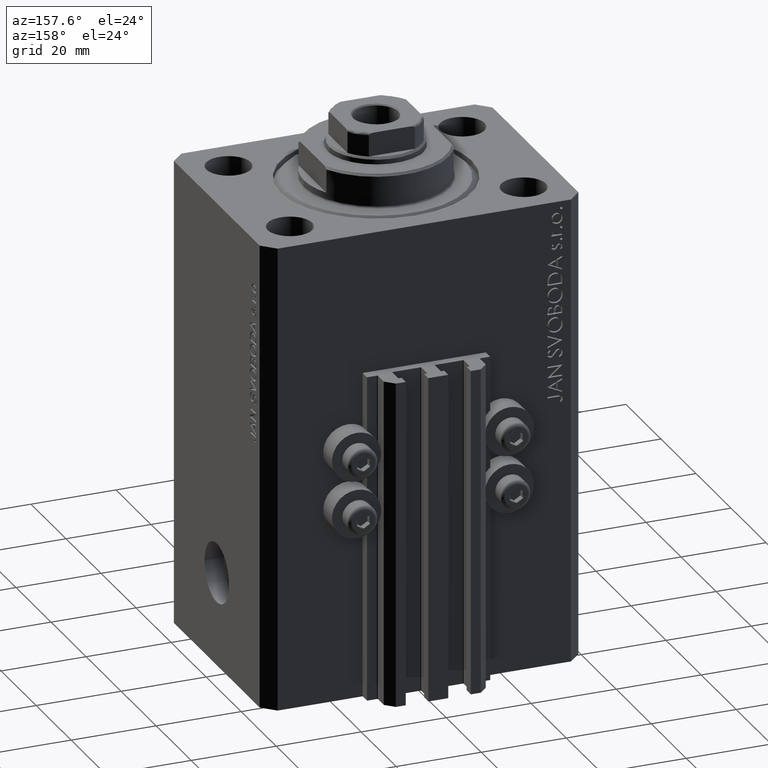
[diagram: clean part render]
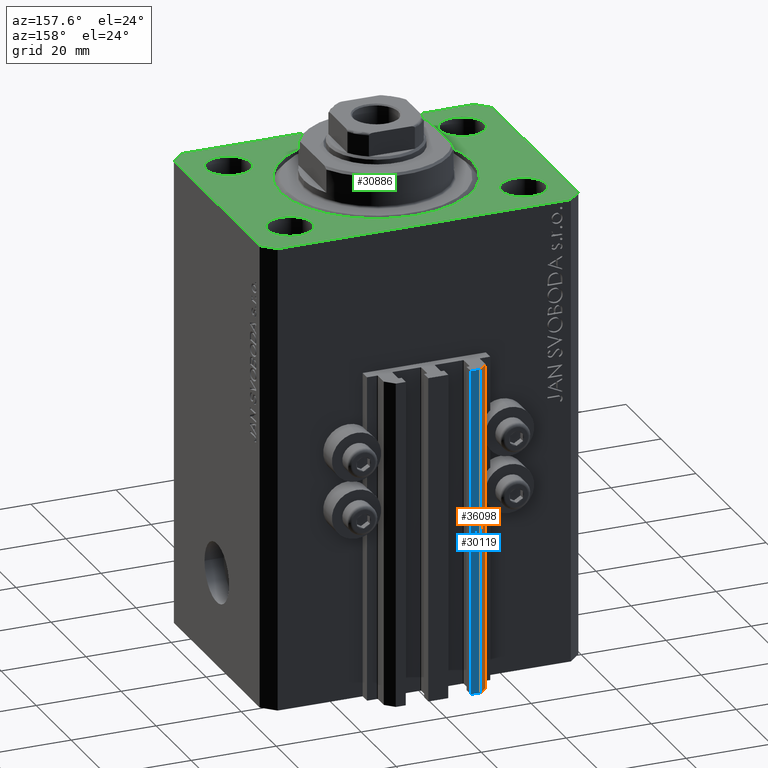
[diagram: same view with three faces highlighted in distinct colors, each labeled with its STEP entity id]
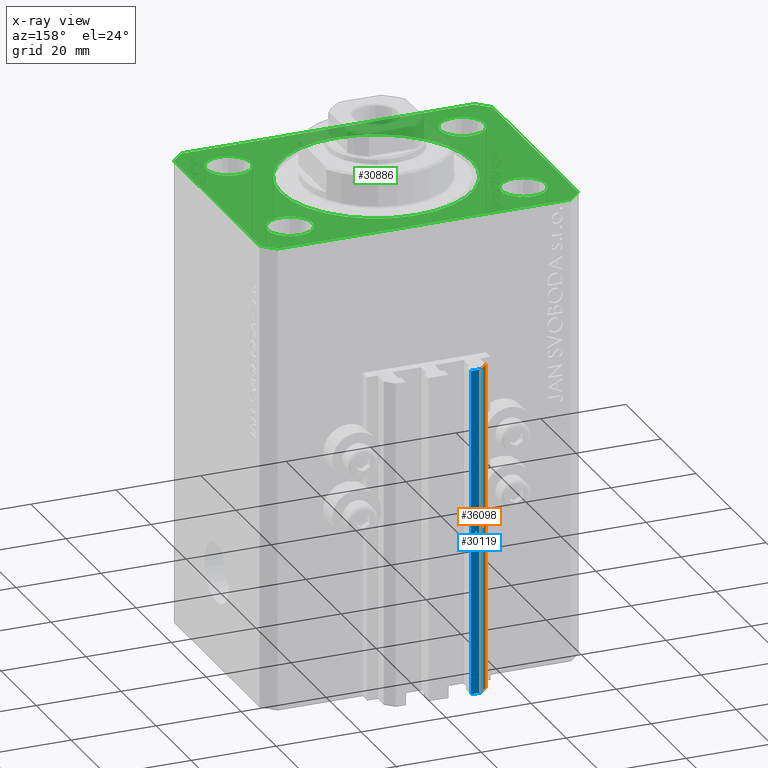
[diagram: x-ray of the same camera — body ghosted, the three highlighted faces saturated]
A machine part, auxiliary view with three faces highlighted in distinct colors.
The next image is the same camera in x-ray (body ghosted, the three faces saturated) — at least one of them is partly hidden behind the body in this view.
Their STEP definitions:

[orange] entity #36098 — the highlighted planar face has unit normal (-0.7071, 0.7071, 0).
#173 = VERTEX_POINT ( 'NONE', #32015 ) ;
#468 = AXIS2_PLACEMENT_3D ( 'NONE', #15660, #8499, #19495 ) ;
#2737 = EDGE_CURVE ( 'NONE', #23709, #173, #38457, .T. ) ;
#6041 = VERTEX_POINT ( 'NONE', #30631 ) ;
#8356 = CARTESIAN_POINT ( 'NONE',  ( -10.00000000000000000, 35.50000000000000000, -110.0000000000000000 ) ) ;
#8499 = DIRECTION ( 'NONE',  ( -0.7071067811865490160, 0.7071067811865461294, 0.000000000000000000 ) ) ;
#10199 = ORIENTED_EDGE ( 'NONE', *, *, #36107, .F. ) ;
#11472 = VECTOR ( 'NONE', #38017, 1000.000000000000000 ) ;
#12219 = CARTESIAN_POINT ( 'NONE',  ( -12.00000000000000000, 33.49999999999998579, -110.0000000000000000 ) ) ;
#15660 = CARTESIAN_POINT ( 'NONE',  ( -10.00000000000000000, 35.50000000000000000, -110.0000000000000000 ) ) ;
#15733 = DIRECTION ( 'NONE',  ( 0.000000000000000000, 0.000000000000000000, 1.000000000000000000 ) ) ;
#16113 = LINE ( 'NONE', #30247, #44229 ) ;
#18746 = ORIENTED_EDGE ( 'NONE', *, *, #2737, .T. ) ;
#19495 = DIRECTION ( 'NONE',  ( -0.7071067811865460184, -0.7071067811865489050, 0.000000000000000000 ) ) ;
#19519 = EDGE_CURVE ( 'NONE', #6041, #23709, #16113, .T. ) ;
#22275 = CARTESIAN_POINT ( 'NONE',  ( -10.00000000000000000, 35.50000000000000000, -33.00000000000000000 ) ) ;
#22371 = FACE_OUTER_BOUND ( 'NONE', #36967, .T. ) ;
#22626 = VECTOR ( 'NONE', #33639, 1000.000000000000227 ) ;
#22660 = EDGE_CURVE ( 'NONE', #6041, #29051, #26538, .T. ) ;
#23709 = VERTEX_POINT ( 'NONE', #12219 ) ;
#26538 = LINE ( 'NONE', #8356, #11472 ) ;
#29051 = VERTEX_POINT ( 'NONE', #22275 ) ;
#30247 = CARTESIAN_POINT ( 'NONE',  ( -10.00000000000000000, 35.50000000000000000, -110.0000000000000000 ) ) ;
#30345 = CARTESIAN_POINT ( 'NONE',  ( -12.00000000000000000, 33.49999999999998579, -110.0000000000000000 ) ) ;
#30507 = LINE ( 'NONE', #41515, #22626 ) ;
#30631 = CARTESIAN_POINT ( 'NONE',  ( -10.00000000000000000, 35.50000000000000000, -110.0000000000000000 ) ) ;
#32015 = CARTESIAN_POINT ( 'NONE',  ( -12.00000000000000000, 33.49999999999998579, -33.00000000000000000 ) ) ;
#33639 = DIRECTION ( 'NONE',  ( -0.7071067811865460184, -0.7071067811865490160, 0.000000000000000000 ) ) ;
#36098 = ADVANCED_FACE ( 'NONE', ( #22371 ), #36979, .T. ) ;
#36107 = EDGE_CURVE ( 'NONE', #29051, #173, #30507, .T. ) ;
#36967 = EDGE_LOOP ( 'NONE', ( #10199, #47163, #41577, #18746 ) ) ;
#36979 = PLANE ( 'NONE',  #468 ) ;
#37673 = DIRECTION ( 'NONE',  ( -0.7071067811865460184, -0.7071067811865490160, 0.000000000000000000 ) ) ;
#38017 = DIRECTION ( 'NONE',  ( 0.000000000000000000, 0.000000000000000000, 1.000000000000000000 ) ) ;
#38457 = LINE ( 'NONE', #30345, #43246 ) ;
#41515 = CARTESIAN_POINT ( 'NONE',  ( -10.00000000000000000, 35.50000000000000000, -33.00000000000000000 ) ) ;
#41577 = ORIENTED_EDGE ( 'NONE', *, *, #19519, .T. ) ;
#43246 = VECTOR ( 'NONE', #15733, 1000.000000000000000 ) ;
#44229 = VECTOR ( 'NONE', #37673, 1000.000000000000227 ) ;
#47163 = ORIENTED_EDGE ( 'NONE', *, *, #22660, .F. ) ;

[blue] entity #30119 — the highlighted planar face has unit normal (0, 1, 0).
#281 = CARTESIAN_POINT ( 'NONE',  ( -7.650000000000000355, 35.50000000000000000, -110.0000000000000000 ) ) ;
#593 = ORIENTED_EDGE ( 'NONE', *, *, #2146, .F. ) ;
#2095 = DIRECTION ( 'NONE',  ( 0.000000000000000000, 0.000000000000000000, 1.000000000000000000 ) ) ;
#2146 = EDGE_CURVE ( 'NONE', #24169, #29051, #8211, .T. ) ;
#4199 = VECTOR ( 'NONE', #7571, 1000.000000000000000 ) ;
#6041 = VERTEX_POINT ( 'NONE', #30631 ) ;
#7571 = DIRECTION ( 'NONE',  ( -1.000000000000000000, 0.000000000000000000, 0.000000000000000000 ) ) ;
#8211 = LINE ( 'NONE', #15614, #24906 ) ;
#8356 = CARTESIAN_POINT ( 'NONE',  ( -10.00000000000000000, 35.50000000000000000, -110.0000000000000000 ) ) ;
#10987 = DIRECTION ( 'NONE',  ( 0.000000000000000000, 1.000000000000000000, -0.000000000000000000 ) ) ;
#11472 = VECTOR ( 'NONE', #38017, 1000.000000000000000 ) ;
#11619 = LINE ( 'NONE', #26219, #4199 ) ;
#15614 = CARTESIAN_POINT ( 'NONE',  ( -7.650000000000000355, 35.50000000000000000, -33.00000000000000000 ) ) ;
#17984 = DIRECTION ( 'NONE',  ( 0.000000000000000000, 0.000000000000000000, 1.000000000000000000 ) ) ;
#21810 = LINE ( 'NONE', #281, #47203 ) ;
#22275 = CARTESIAN_POINT ( 'NONE',  ( -10.00000000000000000, 35.50000000000000000, -33.00000000000000000 ) ) ;
#22581 = ORIENTED_EDGE ( 'NONE', *, *, #22660, .T. ) ;
#22660 = EDGE_CURVE ( 'NONE', #6041, #29051, #26538, .T. ) ;
#24169 = VERTEX_POINT ( 'NONE', #37238 ) ;
#24906 = VECTOR ( 'NONE', #44357, 1000.000000000000000 ) ;
#25360 = FACE_OUTER_BOUND ( 'NONE', #33948, .T. ) ;
#26219 = CARTESIAN_POINT ( 'NONE',  ( -7.650000000000000355, 35.50000000000000000, -110.0000000000000000 ) ) ;
#26538 = LINE ( 'NONE', #8356, #11472 ) ;
#27113 = VERTEX_POINT ( 'NONE', #40731 ) ;
#27172 = AXIS2_PLACEMENT_3D ( 'NONE', #43774, #10987, #2095 ) ;
#28417 = EDGE_CURVE ( 'NONE', #27113, #6041, #11619, .T. ) ;
#29051 = VERTEX_POINT ( 'NONE', #22275 ) ;
#30119 = ADVANCED_FACE ( 'NONE', ( #25360 ), #47381, .T. ) ;
#30177 = ORIENTED_EDGE ( 'NONE', *, *, #39667, .F. ) ;
#30631 = CARTESIAN_POINT ( 'NONE',  ( -10.00000000000000000, 35.50000000000000000, -110.0000000000000000 ) ) ;
#33948 = EDGE_LOOP ( 'NONE', ( #593, #30177, #41894, #22581 ) ) ;
#37238 = CARTESIAN_POINT ( 'NONE',  ( -7.650000000000000355, 35.50000000000000000, -33.00000000000000000 ) ) ;
#38017 = DIRECTION ( 'NONE',  ( 0.000000000000000000, 0.000000000000000000, 1.000000000000000000 ) ) ;
#39667 = EDGE_CURVE ( 'NONE', #27113, #24169, #21810, .T. ) ;
#40731 = CARTESIAN_POINT ( 'NONE',  ( -7.650000000000000355, 35.50000000000000000, -110.0000000000000000 ) ) ;
#41894 = ORIENTED_EDGE ( 'NONE', *, *, #28417, .T. ) ;
#43774 = CARTESIAN_POINT ( 'NONE',  ( -7.650000000000000355, 35.50000000000000000, -110.0000000000000000 ) ) ;
#44357 = DIRECTION ( 'NONE',  ( -1.000000000000000000, 0.000000000000000000, 0.000000000000000000 ) ) ;
#47203 = VECTOR ( 'NONE', #17984, 1000.000000000000000 ) ;
#47381 = PLANE ( 'NONE',  #27172 ) ;

[green] entity #30886 — the highlighted planar face has unit normal (0, 0, 1).
#24 = LINE ( 'NONE', #14352, #7596 ) ;
#119 = EDGE_CURVE ( 'NONE', #2964, #8043, #23300, .T. ) ;
#520 = CIRCLE ( 'NONE', #10413, 22.50000000000000355 ) ;
#704 = CIRCLE ( 'NONE', #2991, 5.250000000000000888 ) ;
#1052 = EDGE_CURVE ( 'NONE', #10275, #7140, #46074, .T. ) ;
#1702 = CARTESIAN_POINT ( 'NONE',  ( 27.50000000000000000, 17.49999999999999289, 0.000000000000000000 ) ) ;
#1937 = CIRCLE ( 'NONE', #40160, 5.250000000000000888 ) ;
#2112 = CARTESIAN_POINT ( 'NONE',  ( 27.50000000000000000, 17.49999999999999289, 0.000000000000000000 ) ) ;
#2142 = CARTESIAN_POINT ( 'NONE',  ( 37.49999999999999289, -24.50000000000000000, 0.000000000000000000 ) ) ;
#2248 = ORIENTED_EDGE ( 'NONE', *, *, #19315, .F. ) ;
#2426 = FACE_OUTER_BOUND ( 'NONE', #10309, .T. ) ;
#2462 = CARTESIAN_POINT ( 'NONE',  ( 34.49999999999999289, -27.49999999999999645, 0.000000000000000000 ) ) ;
#2483 = EDGE_LOOP ( 'NONE', ( #40923, #45808 ) ) ;
#2739 = CARTESIAN_POINT ( 'NONE',  ( 37.50000000000051870, 24.49999999999995381, 0.000000000000000000 ) ) ;
#2964 = VERTEX_POINT ( 'NONE', #7094 ) ;
#2977 = DIRECTION ( 'NONE',  ( 1.000000000000000000, 0.000000000000000000, 0.000000000000000000 ) ) ;
#2982 = EDGE_CURVE ( 'NONE', #43987, #19562, #23395, .T. ) ;
#2991 = AXIS2_PLACEMENT_3D ( 'NONE', #18179, #18427, #7668 ) ;
#3036 = EDGE_CURVE ( 'NONE', #40335, #42058, #520, .T. ) ;
#3265 = DIRECTION ( 'NONE',  ( 1.000000000000000000, 0.000000000000000000, 0.000000000000000000 ) ) ;
#3968 = CIRCLE ( 'NONE', #30704, 5.250000000000000888 ) ;
#4401 = CARTESIAN_POINT ( 'NONE',  ( 32.74999999999999289, -17.50000000000000000, 0.000000000000000000 ) ) ;
#4451 = ORIENTED_EDGE ( 'NONE', *, *, #33014, .T. ) ;
#4583 = DIRECTION ( 'NONE',  ( 0.000000000000000000, 0.000000000000000000, 1.000000000000000000 ) ) ;
#4638 = CARTESIAN_POINT ( 'NONE',  ( 37.49999999999999289, -24.50000000000000000, 0.000000000000000000 ) ) ;
#4700 = CARTESIAN_POINT ( 'NONE',  ( -27.50000000000000000, 17.49999999999999645, 0.000000000000000000 ) ) ;
#4879 = LINE ( 'NONE', #12289, #34278 ) ;
#5401 = CARTESIAN_POINT ( 'NONE',  ( 0.000000000000000000, 0.000000000000000000, 0.000000000000000000 ) ) ;
#5839 = ORIENTED_EDGE ( 'NONE', *, *, #16198, .F. ) ;
#6262 = EDGE_LOOP ( 'NONE', ( #40230, #32883 ) ) ;
#7094 = CARTESIAN_POINT ( 'NONE',  ( 32.75000000000000000, 17.49999999999999289, 0.000000000000000000 ) ) ;
#7140 = VERTEX_POINT ( 'NONE', #38007 ) ;
#7436 = ORIENTED_EDGE ( 'NONE', *, *, #3036, .F. ) ;
#7596 = VECTOR ( 'NONE', #21778, 1000.000000000000000 ) ;
#7668 = DIRECTION ( 'NONE',  ( 1.000000000000000000, 0.000000000000000000, 0.000000000000000000 ) ) ;
#7751 = EDGE_CURVE ( 'NONE', #20868, #31567, #4879, .T. ) ;
#7808 = DIRECTION ( 'NONE',  ( 0.000000000000000000, 0.000000000000000000, 1.000000000000000000 ) ) ;
#8043 = VERTEX_POINT ( 'NONE', #38309 ) ;
#9172 = ORIENTED_EDGE ( 'NONE', *, *, #17668, .T. ) ;
#9218 = CARTESIAN_POINT ( 'NONE',  ( -34.49999999999999289, 27.50000000000000000, 0.000000000000000000 ) ) ;
#9227 = DIRECTION ( 'NONE',  ( 1.000000000000000000, 0.000000000000000000, 0.000000000000000000 ) ) ;
#9401 = CIRCLE ( 'NONE', #46114, 5.250000000000000888 ) ;
#9514 = AXIS2_PLACEMENT_3D ( 'NONE', #2112, #16703, #31309 ) ;
#9583 = CARTESIAN_POINT ( 'NONE',  ( -34.49999999999999289, 27.50000000000000000, 0.000000000000000000 ) ) ;
#9958 = CARTESIAN_POINT ( 'NONE',  ( 22.24999999999999289, -17.50000000000000000, 0.000000000000000000 ) ) ;
#10071 = FACE_BOUND ( 'NONE', #25714, .T. ) ;
#10141 = CARTESIAN_POINT ( 'NONE',  ( 27.49999999999999289, -17.50000000000000000, 0.000000000000000000 ) ) ;
#10275 = VERTEX_POINT ( 'NONE', #9583 ) ;
#10309 = EDGE_LOOP ( 'NONE', ( #13477, #42538, #14194, #11477, #47132, #9172, #4451, #19118 ) ) ;
#10365 = EDGE_CURVE ( 'NONE', #41951, #10275, #24, .T. ) ;
#10413 = AXIS2_PLACEMENT_3D ( 'NONE', #18568, #7808, #22388 ) ;
#10493 = LINE ( 'NONE', #25103, #32139 ) ;
#10664 = CARTESIAN_POINT ( 'NONE',  ( -22.25000000000000000, 17.49999999999999645, 0.000000000000000000 ) ) ;
#10740 = VECTOR ( 'NONE', #43186, 1000.000000000000114 ) ;
#11149 = DIRECTION ( 'NONE',  ( 1.000000000000000000, 0.000000000000000000, 0.000000000000000000 ) ) ;
#11477 = ORIENTED_EDGE ( 'NONE', *, *, #7751, .T. ) ;
#11860 = ORIENTED_EDGE ( 'NONE', *, *, #2982, .F. ) ;
#12289 = CARTESIAN_POINT ( 'NONE',  ( -37.49999999999999289, -24.50000000000000000, 0.000000000000000000 ) ) ;
#12851 = CIRCLE ( 'NONE', #34268, 5.250000000000000888 ) ;
#13259 = DIRECTION ( 'NONE',  ( -0.7071067811865471286, -0.7071067811865479058, 0.000000000000000000 ) ) ;
#13365 = DIRECTION ( 'NONE',  ( 1.076236605503979380E-14, 1.000000000000000000, 0.000000000000000000 ) ) ;
#13477 = ORIENTED_EDGE ( 'NONE', *, *, #10365, .T. ) ;
#13655 = FACE_BOUND ( 'NONE', #2483, .T. ) ;
#13804 = VERTEX_POINT ( 'NONE', #10664 ) ;
#14194 = ORIENTED_EDGE ( 'NONE', *, *, #26909, .T. ) ;
#14352 = CARTESIAN_POINT ( 'NONE',  ( 34.50000000000056843, 27.50000000000000000, 0.000000000000000000 ) ) ;
#15796 = DIRECTION ( 'NONE',  ( 1.000000000000000000, 0.000000000000000000, 0.000000000000000000 ) ) ;
#16198 = EDGE_CURVE ( 'NONE', #29532, #38544, #3968, .T. ) ;
#16285 = DIRECTION ( 'NONE',  ( 1.000000000000000000, 0.000000000000000000, 0.000000000000000000 ) ) ;
#16638 = VERTEX_POINT ( 'NONE', #2462 ) ;
#16703 = DIRECTION ( 'NONE',  ( 0.000000000000000000, 0.000000000000000000, 1.000000000000000000 ) ) ;
#17018 = CARTESIAN_POINT ( 'NONE',  ( 0.000000000000000000, 0.000000000000000000, 0.000000000000000000 ) ) ;
#17668 = EDGE_CURVE ( 'NONE', #16638, #32512, #27737, .T. ) ;
#18179 = CARTESIAN_POINT ( 'NONE',  ( -27.50000000000000000, 17.49999999999999645, 0.000000000000000000 ) ) ;
#18245 = EDGE_CURVE ( 'NONE', #13804, #31180, #12851, .T. ) ;
#18427 = DIRECTION ( 'NONE',  ( 0.000000000000000000, 0.000000000000000000, 1.000000000000000000 ) ) ;
#18568 = CARTESIAN_POINT ( 'NONE',  ( 0.000000000000000000, 0.000000000000000000, 0.000000000000000000 ) ) ;
#18808 = DIRECTION ( 'NONE',  ( 0.000000000000000000, 0.000000000000000000, 1.000000000000000000 ) ) ;
#19118 = ORIENTED_EDGE ( 'NONE', *, *, #46938, .T. ) ;
#19151 = AXIS2_PLACEMENT_3D ( 'NONE', #1702, #27056, #16285 ) ;
#19315 = EDGE_CURVE ( 'NONE', #42058, #40335, #22850, .T. ) ;
#19542 = VECTOR ( 'NONE', #13259, 1000.000000000000000 ) ;
#19562 = VERTEX_POINT ( 'NONE', #27584 ) ;
#19991 = DIRECTION ( 'NONE',  ( 0.000000000000000000, 0.000000000000000000, 1.000000000000000000 ) ) ;
#20868 = VERTEX_POINT ( 'NONE', #30402 ) ;
#21191 = CARTESIAN_POINT ( 'NONE',  ( -32.74999999999999289, -17.50000000000000000, 0.000000000000000000 ) ) ;
#21319 = FACE_BOUND ( 'NONE', #6262, .T. ) ;
#21675 = CARTESIAN_POINT ( 'NONE',  ( -27.49999999999999289, -17.50000000000000000, 0.000000000000000000 ) ) ;
#21778 = DIRECTION ( 'NONE',  ( -1.000000000000000000, 0.000000000000000000, 0.000000000000000000 ) ) ;
#22388 = DIRECTION ( 'NONE',  ( 1.000000000000000000, 0.000000000000000000, 0.000000000000000000 ) ) ;
#22556 = VECTOR ( 'NONE', #13365, 1000.000000000000000 ) ;
#22850 = CIRCLE ( 'NONE', #47316, 22.50000000000000355 ) ;
#22946 = EDGE_CURVE ( 'NONE', #31567, #16638, #10493, .T. ) ;
#23300 = CIRCLE ( 'NONE', #9514, 5.250000000000000888 ) ;
#23395 = CIRCLE ( 'NONE', #34114, 5.250000000000000888 ) ;
#23423 = ORIENTED_EDGE ( 'NONE', *, *, #29467, .F. ) ;
#23739 = EDGE_CURVE ( 'NONE', #19562, #43987, #9401, .T. ) ;
#24149 = CARTESIAN_POINT ( 'NONE',  ( 34.49999999999999289, -27.49999999999999645, 0.000000000000000000 ) ) ;
#24485 = CARTESIAN_POINT ( 'NONE',  ( 22.50000000000000355, 0.000000000000000000, 0.000000000000000000 ) ) ;
#24765 = LINE ( 'NONE', #39363, #10740 ) ;
#25103 = CARTESIAN_POINT ( 'NONE',  ( -34.49999999999998579, -27.49999999999999645, 0.000000000000000000 ) ) ;
#25714 = EDGE_LOOP ( 'NONE', ( #5839, #23423 ) ) ;
#25986 = CARTESIAN_POINT ( 'NONE',  ( -32.75000000000000000, 17.49999999999999645, 0.000000000000000000 ) ) ;
#26909 = EDGE_CURVE ( 'NONE', #7140, #20868, #42667, .T. ) ;
#26953 = DIRECTION ( 'NONE',  ( 0.000000000000000000, 0.000000000000000000, 1.000000000000000000 ) ) ;
#27056 = DIRECTION ( 'NONE',  ( 0.000000000000000000, 0.000000000000000000, 1.000000000000000000 ) ) ;
#27584 = CARTESIAN_POINT ( 'NONE',  ( -22.24999999999999289, -17.50000000000000000, 0.000000000000000000 ) ) ;
#27737 = LINE ( 'NONE', #24149, #39688 ) ;
#28057 = CARTESIAN_POINT ( 'NONE',  ( -37.49999999999999289, 24.50000000000000000, 0.000000000000000000 ) ) ;
#28446 = DIRECTION ( 'NONE',  ( 1.000000000000000000, 0.000000000000000000, 0.000000000000000000 ) ) ;
#28682 = LINE ( 'NONE', #2142, #22556 ) ;
#29427 = EDGE_LOOP ( 'NONE', ( #43799, #11860 ) ) ;
#29467 = EDGE_CURVE ( 'NONE', #38544, #29532, #1937, .T. ) ;
#29512 = CARTESIAN_POINT ( 'NONE',  ( -34.49999999999998579, -27.49999999999999645, 0.000000000000000000 ) ) ;
#29532 = VERTEX_POINT ( 'NONE', #4401 ) ;
#30402 = CARTESIAN_POINT ( 'NONE',  ( -37.49999999999999289, -24.50000000000000000, 0.000000000000000000 ) ) ;
#30704 = AXIS2_PLACEMENT_3D ( 'NONE', #41789, #26953, #9227 ) ;
#30886 = ADVANCED_FACE ( 'NONE', ( #39505, #35223, #10071, #21319, #13655, #2426 ), #46704, .T. ) ;
#31180 = VERTEX_POINT ( 'NONE', #25986 ) ;
#31309 = DIRECTION ( 'NONE',  ( 1.000000000000000000, 0.000000000000000000, 0.000000000000000000 ) ) ;
#31567 = VERTEX_POINT ( 'NONE', #29512 ) ;
#32139 = VECTOR ( 'NONE', #28446, 1000.000000000000000 ) ;
#32512 = VERTEX_POINT ( 'NONE', #4638 ) ;
#32883 = ORIENTED_EDGE ( 'NONE', *, *, #46610, .F. ) ;
#33014 = EDGE_CURVE ( 'NONE', #32512, #46154, #28682, .T. ) ;
#34114 = AXIS2_PLACEMENT_3D ( 'NONE', #21675, #43701, #3265 ) ;
#34268 = AXIS2_PLACEMENT_3D ( 'NONE', #4700, #18808, #11149 ) ;
#34278 = VECTOR ( 'NONE', #37669, 1000.000000000000000 ) ;
#35223 = FACE_BOUND ( 'NONE', #29427, .T. ) ;
#35619 = AXIS2_PLACEMENT_3D ( 'NONE', #17018, #46224, #39042 ) ;
#36269 = VECTOR ( 'NONE', #38844, 1000.000000000000000 ) ;
#37669 = DIRECTION ( 'NONE',  ( 0.7071067811865483499, -0.7071067811865466846, 0.000000000000000000 ) ) ;
#37911 = CARTESIAN_POINT ( 'NONE',  ( 34.50000000000056843, 27.50000000000000000, 0.000000000000000000 ) ) ;
#38007 = CARTESIAN_POINT ( 'NONE',  ( -37.49999999999999289, 24.50000000000000000, 0.000000000000000000 ) ) ;
#38309 = CARTESIAN_POINT ( 'NONE',  ( 22.25000000000000000, 17.49999999999999289, 0.000000000000000000 ) ) ;
#38544 = VERTEX_POINT ( 'NONE', #9958 ) ;
#38844 = DIRECTION ( 'NONE',  ( 0.000000000000000000, -1.000000000000000000, 0.000000000000000000 ) ) ;
#39042 = DIRECTION ( 'NONE',  ( 1.000000000000000000, 0.000000000000000000, -0.000000000000000000 ) ) ;
#39363 = CARTESIAN_POINT ( 'NONE',  ( 37.50000000000051870, 24.49999999999995381, 0.000000000000000000 ) ) ;
#39505 = FACE_BOUND ( 'NONE', #39728, .T. ) ;
#39688 = VECTOR ( 'NONE', #42347, 1000.000000000000114 ) ;
#39728 = EDGE_LOOP ( 'NONE', ( #2248, #7436 ) ) ;
#39894 = CARTESIAN_POINT ( 'NONE',  ( -22.50000000000000355, 2.755455298081544383E-15, 0.000000000000000000 ) ) ;
#40160 = AXIS2_PLACEMENT_3D ( 'NONE', #10141, #46537, #2977 ) ;
#40230 = ORIENTED_EDGE ( 'NONE', *, *, #119, .F. ) ;
#40335 = VERTEX_POINT ( 'NONE', #39894 ) ;
#40923 = ORIENTED_EDGE ( 'NONE', *, *, #18245, .F. ) ;
#41789 = CARTESIAN_POINT ( 'NONE',  ( 27.49999999999999289, -17.50000000000000000, 0.000000000000000000 ) ) ;
#41951 = VERTEX_POINT ( 'NONE', #37911 ) ;
#42058 = VERTEX_POINT ( 'NONE', #24485 ) ;
#42074 = CIRCLE ( 'NONE', #19151, 5.250000000000000888 ) ;
#42347 = DIRECTION ( 'NONE',  ( 0.7071067811865474617, 0.7071067811865474617, 0.000000000000000000 ) ) ;
#42538 = ORIENTED_EDGE ( 'NONE', *, *, #1052, .T. ) ;
#42667 = LINE ( 'NONE', #28057, #36269 ) ;
#42852 = EDGE_CURVE ( 'NONE', #31180, #13804, #704, .T. ) ;
#43186 = DIRECTION ( 'NONE',  ( -0.7071067811865364705, 0.7071067811865584529, 0.000000000000000000 ) ) ;
#43701 = DIRECTION ( 'NONE',  ( 0.000000000000000000, 0.000000000000000000, 1.000000000000000000 ) ) ;
#43799 = ORIENTED_EDGE ( 'NONE', *, *, #23739, .F. ) ;
#43987 = VERTEX_POINT ( 'NONE', #21191 ) ;
#44530 = CARTESIAN_POINT ( 'NONE',  ( -27.49999999999999289, -17.50000000000000000, 0.000000000000000000 ) ) ;
#45600 = DIRECTION ( 'NONE',  ( 1.000000000000000000, 0.000000000000000000, 0.000000000000000000 ) ) ;
#45808 = ORIENTED_EDGE ( 'NONE', *, *, #42852, .F. ) ;
#46074 = LINE ( 'NONE', #9218, #19542 ) ;
#46114 = AXIS2_PLACEMENT_3D ( 'NONE', #44530, #4583, #15796 ) ;
#46154 = VERTEX_POINT ( 'NONE', #2739 ) ;
#46224 = DIRECTION ( 'NONE',  ( 0.000000000000000000, 0.000000000000000000, 1.000000000000000000 ) ) ;
#46537 = DIRECTION ( 'NONE',  ( 0.000000000000000000, 0.000000000000000000, 1.000000000000000000 ) ) ;
#46610 = EDGE_CURVE ( 'NONE', #8043, #2964, #42074, .T. ) ;
#46704 = PLANE ( 'NONE',  #35619 ) ;
#46938 = EDGE_CURVE ( 'NONE', #46154, #41951, #24765, .T. ) ;
#47132 = ORIENTED_EDGE ( 'NONE', *, *, #22946, .T. ) ;
#47316 = AXIS2_PLACEMENT_3D ( 'NONE', #5401, #19991, #45600 ) ;